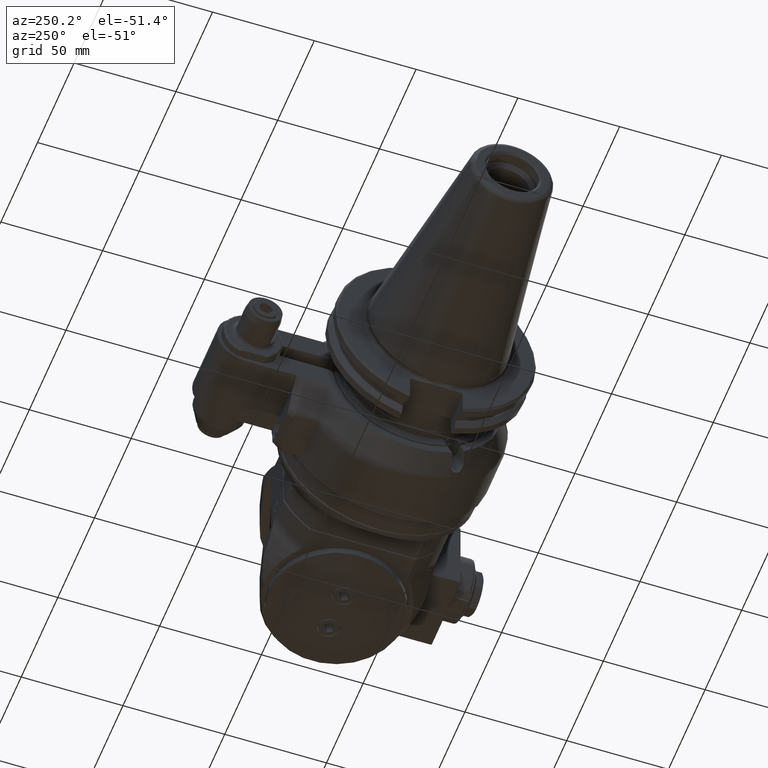
[diagram: clean part render]
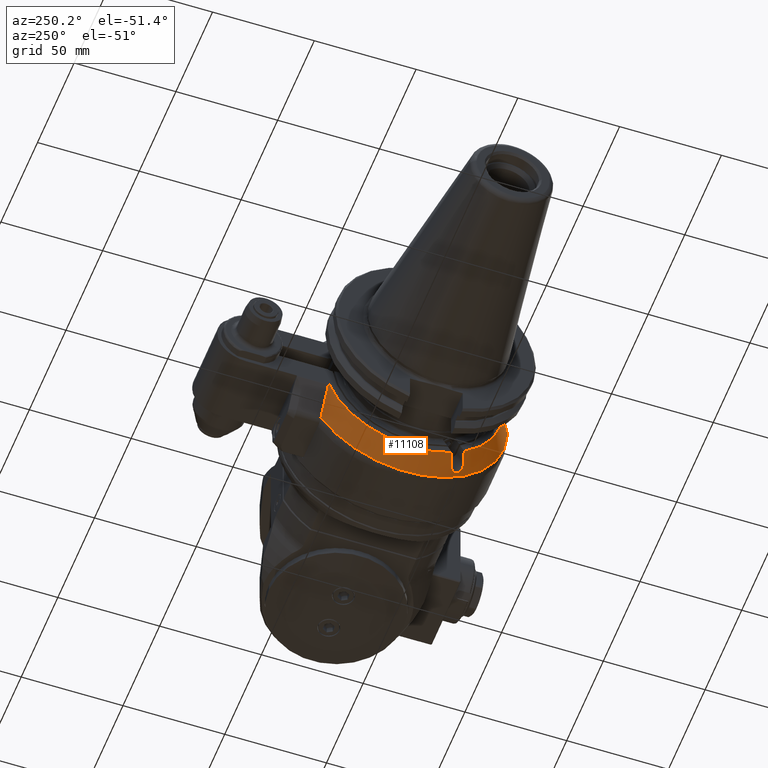
[diagram: same view with one face highlighted and labeled with its STEP entity id]
A machine part, auxiliary view. The second image highlights one B-rep face of the part: STEP entity #11108.
In plain terms, the highlighted conical surface has half-angle 30 deg.
Its self-contained STEP definition (entity closure, byte-faithful):
#337=CONICAL_SURFACE('',#12134,46.96410161514,0.523598775598299);
#771=CIRCLE('',#12135,49.92820323028);
#772=CIRCLE('',#12136,44.);
#773=CIRCLE('',#12137,44.);
#1354=FACE_OUTER_BOUND('',#2082,.T.);
#2082=EDGE_LOOP('',(#8945,#8946,#8947,#8948,#8949,#8950,#8951,#8952));
#4073=B_SPLINE_CURVE_WITH_KNOTS('',3,(#18545,#18546,#18547,#18548,#18549,
#18550,#18551,#18552,#18553,#18554),.UNSPECIFIED.,.F.,.F.,(4,3,3,4),(0.,
0.3333333333333,0.6666666666667,1.),.UNSPECIFIED.);
#4076=B_SPLINE_CURVE_WITH_KNOTS('',3,(#18607,#18608,#18609,#18610,#18611,
#18612,#18613,#18614,#18615,#18616,#18617,#18618,#18619,#18620,#18621,#18622,
#18623,#18624),.UNSPECIFIED.,.F.,.F.,(4,2,2,2,2,2,2,2,4),(1.11206982951625,
1.24885677734264,1.4029266724495,1.5444028479349,1.68587902342029,1.82735519890569,
1.96883137439109,2.12290126949794,2.25968821732541),.UNSPECIFIED.);
#4078=B_SPLINE_CURVE_WITH_KNOTS('',3,(#18646,#18647,#18648,#18649,#18650,
#18651,#18652,#18653,#18654,#18655),.UNSPECIFIED.,.F.,.F.,(4,3,3,4),(0.,
0.3333333333333,0.6666666666667,1.),.UNSPECIFIED.);
#4079=B_SPLINE_CURVE_WITH_KNOTS('',3,(#18661,#18662,#18663,#18664,#18665,
#18666,#18667,#18668,#18669,#18670),.UNSPECIFIED.,.F.,.F.,(4,3,3,4),(0.,
0.3333333333333,0.6666666666667,1.),.UNSPECIFIED.);
#4260=(
BOUNDED_CURVE()
B_SPLINE_CURVE(2,(#18424,#18425,#18426),.UNSPECIFIED.,.F.,.F.)
B_SPLINE_CURVE_WITH_KNOTS((3,3),(-2.43290769105801,-0.320305328668483),
 .UNSPECIFIED.)
CURVE()
GEOMETRIC_REPRESENTATION_ITEM()
RATIONAL_B_SPLINE_CURVE((1.03252076511009,1.03062027413364,1.00749895945509))
REPRESENTATION_ITEM('')
);
#4947=VERTEX_POINT('',#18412);
#4948=VERTEX_POINT('',#18423);
#4969=VERTEX_POINT('',#18542);
#4970=VERTEX_POINT('',#18544);
#4983=VERTEX_POINT('',#18605);
#4984=VERTEX_POINT('',#18606);
#4988=VERTEX_POINT('',#18645);
#4989=VERTEX_POINT('',#18659);
#6336=EDGE_CURVE('',#4947,#4948,#4260,.T.);
#6363=EDGE_CURVE('',#4970,#4969,#4073,.T.);
#6381=EDGE_CURVE('',#4983,#4984,#4076,.F.);
#6388=EDGE_CURVE('',#4983,#4988,#4078,.T.);
#6390=EDGE_CURVE('',#4970,#4947,#771,.T.);
#6391=EDGE_CURVE('',#4989,#4969,#772,.T.);
#6392=EDGE_CURVE('',#4989,#4984,#4079,.T.);
#6393=EDGE_CURVE('',#4948,#4988,#773,.T.);
#8945=ORIENTED_EDGE('',*,*,#6390,.F.);
#8946=ORIENTED_EDGE('',*,*,#6363,.T.);
#8947=ORIENTED_EDGE('',*,*,#6391,.F.);
#8948=ORIENTED_EDGE('',*,*,#6392,.T.);
#8949=ORIENTED_EDGE('',*,*,#6381,.F.);
#8950=ORIENTED_EDGE('',*,*,#6388,.T.);
#8951=ORIENTED_EDGE('',*,*,#6393,.F.);
#8952=ORIENTED_EDGE('',*,*,#6336,.F.);
#11108=ADVANCED_FACE('',(#1354),#337,.T.);
#12134=AXIS2_PLACEMENT_3D('',#18657,#14439,#14440);
#12135=AXIS2_PLACEMENT_3D('',#18658,#14441,#14442);
#12136=AXIS2_PLACEMENT_3D('',#18660,#14443,#14444);
#12137=AXIS2_PLACEMENT_3D('',#18671,#14445,#14446);
#14439=DIRECTION('center_axis',(1.,0.,0.));
#14440=DIRECTION('ref_axis',(0.,-1.,0.));
#14441=DIRECTION('center_axis',(1.,0.,0.));
#14442=DIRECTION('ref_axis',(0.,-0.999548602989596,-0.0300431400080999));
#14443=DIRECTION('center_axis',(-1.,0.,0.));
#14444=DIRECTION('ref_axis',(0.,-0.567304004296905,-0.823508449688707));
#14445=DIRECTION('center_axis',(-1.,0.,0.));
#14446=DIRECTION('ref_axis',(0.,0.948863636363632,-0.315686235979311));
#18412=CARTESIAN_POINT('',(-41.23205080757,41.75,-27.38180011986));
#18423=CARTESIAN_POINT('',(-51.5,41.74999999999,-13.89019438316));
#18424=CARTESIAN_POINT('Ctrl Pts',(-41.2320508075673,41.75,-27.3818001198562));
#18425=CARTESIAN_POINT('Ctrl Pts',(-48.0442956678564,41.75,-20.2102413126131));
#18426=CARTESIAN_POINT('Ctrl Pts',(-51.4999999999632,41.75,-13.8901943831554));
#18542=CARTESIAN_POINT('',(-51.5,-43.97442438509,-1.5));
#18544=CARTESIAN_POINT('',(-41.2320595617708,-49.9056607292726,-1.50000007595379));
#18545=CARTESIAN_POINT('Ctrl Pts',(-41.23206831446,-49.90565567486,-1.5));
#18546=CARTESIAN_POINT('Ctrl Pts',(-42.37293045262,-49.24668115316,-1.5));
#18547=CARTESIAN_POINT('Ctrl Pts',(-43.5138242319948,-48.5876765558151,
-1.5));
#18548=CARTESIAN_POINT('Ctrl Pts',(-44.6547122553555,-47.928662020786,-1.5));
#18549=CARTESIAN_POINT('Ctrl Pts',(-45.7956002787165,-47.2696474857567,
-1.5));
#18550=CARTESIAN_POINT('Ctrl Pts',(-46.9364825460635,-46.6106230130433,
-1.5));
#18551=CARTESIAN_POINT('Ctrl Pts',(-48.077363540237,-45.9515842405615,-1.5));
#18552=CARTESIAN_POINT('Ctrl Pts',(-49.2182445344102,-45.2925454680799,
-1.5));
#18553=CARTESIAN_POINT('Ctrl Pts',(-50.35912425541,-44.63349239583,-1.5));
#18554=CARTESIAN_POINT('Ctrl Pts',(-51.5,-43.97442438509,-1.5));
#18605=CARTESIAN_POINT('',(-46.5,-20.34687855495,-42.24182743261));
#18606=CARTESIAN_POINT('',(-46.5,-26.40905638145,-38.74182743261));
#18607=CARTESIAN_POINT('Ctrl Pts',(-46.5000000000002,-26.4090563814455,
-38.7418274326129));
#18608=CARTESIAN_POINT('Ctrl Pts',(-46.0992085079157,-26.5250786273062,
-38.9427838572518));
#18609=CARTESIAN_POINT('Ctrl Pts',(-45.6780271021362,-26.5877455833705,
-39.1945532832522));
#18610=CARTESIAN_POINT('Ctrl Pts',(-44.8336229766582,-26.5711996809164,
-39.7934207779667));
#18611=CARTESIAN_POINT('Ctrl Pts',(-44.416786404141,-26.4721822625297,-40.1489075806805));
#18612=CARTESIAN_POINT('Ctrl Pts',(-43.7689100689263,-26.1383338430384,
-40.8117265913294));
#18613=CARTESIAN_POINT('Ctrl Pts',(-43.4858969585476,-25.8928265156274,
-41.1623315039927));
#18614=CARTESIAN_POINT('Ctrl Pts',(-43.1011571537054,-25.2551263794943,
-41.8163473322267));
#18615=CARTESIAN_POINT('Ctrl Pts',(-43.,-24.8621451840586,-42.1193241407055));
#18616=CARTESIAN_POINT('Ctrl Pts',(-43.,-24.0453321040545,-42.5909113923235));
#18617=CARTESIAN_POINT('Ctrl Pts',(-43.1011571537054,-23.5864558934365,
-42.779754686541));
#18618=CARTESIAN_POINT('Ctrl Pts',(-43.4858969585476,-22.7012115036422,
-43.0050112903121));
#18619=CARTESIAN_POINT('Ctrl Pts',(-43.7689100689263,-22.2748250788787,
-43.0423244163336));
#18620=CARTESIAN_POINT('Ctrl Pts',(-44.416786404141,-21.5338827677997,-43.000036123302));
#18621=CARTESIAN_POINT('Ctrl Pts',(-44.8336229766582,-21.1765134567462,
-42.908044321685));
#18622=CARTESIAN_POINT('Ctrl Pts',(-45.6780271021394,-20.6496060415937,
-42.6229397461805));
#18623=CARTESIAN_POINT('Ctrl Pts',(-46.0992085079223,-20.4629008008123,
-42.4427838572491));
#18624=CARTESIAN_POINT('Ctrl Pts',(-46.5000000000096,-20.3468785549518,
-42.2418274326083));
#18645=CARTESIAN_POINT('',(-51.5,-18.89919836257,-39.7343717863));
#18646=CARTESIAN_POINT('Ctrl Pts',(-46.5000000000021,-20.3468785549516,
-42.2418274326133));
#18647=CARTESIAN_POINT('Ctrl Pts',(-47.0555636796788,-20.1860524218991,
-41.9632683989681));
#18648=CARTESIAN_POINT('Ctrl Pts',(-47.6111251834313,-20.0252176577258,
-41.6846944543344));
#18649=CARTESIAN_POINT('Ctrl Pts',(-48.1666839961781,-19.864373839952,-41.4061048113106));
#18650=CARTESIAN_POINT('Ctrl Pts',(-48.7222428089251,-19.7035300221781,
-41.1275151682867));
#18651=CARTESIAN_POINT('Ctrl Pts',(-49.2777989309903,-19.5426771511998,
-40.8489098273047));
#18652=CARTESIAN_POINT('Ctrl Pts',(-49.8333517949414,-19.381814745264,-40.5702879469552));
#18653=CARTESIAN_POINT('Ctrl Pts',(-50.3889046588924,-19.2209523393283,
-40.2916660666057));
#18654=CARTESIAN_POINT('Ctrl Pts',(-50.9444542651007,-19.0600803989606,
-40.0130276473512));
#18655=CARTESIAN_POINT('Ctrl Pts',(-51.5000000000014,-18.8991983625711,
-39.7343717863022));
#18657=CARTESIAN_POINT('Origin',(-46.36602540378,0.,0.));
#18658=CARTESIAN_POINT('Origin',(-41.23205080757,0.,0.));
#18659=CARTESIAN_POINT('',(-51.5,-24.96137618907,-36.2343717863));
#18660=CARTESIAN_POINT('Origin',(-51.5,0.,0.));
#18661=CARTESIAN_POINT('Ctrl Pts',(-51.4999999999995,-24.9613761890695,
-36.2343717862992));
#18662=CARTESIAN_POINT('Ctrl Pts',(-50.9444542651011,-25.1222582254511,
-36.5130276473516));
#18663=CARTESIAN_POINT('Ctrl Pts',(-50.3889046588926,-25.2831302048165,
-36.7916660440905));
#18664=CARTESIAN_POINT('Ctrl Pts',(-49.8333517949413,-25.4439926282826,
-37.070287914319));
#18665=CARTESIAN_POINT('Ctrl Pts',(-49.2777989309897,-25.6048550517487,
-37.3489097845476));
#18666=CARTESIAN_POINT('Ctrl Pts',(-48.7222428089239,-25.7657079191777,
-37.6275151275794));
#18667=CARTESIAN_POINT('Ctrl Pts',(-48.166683996177,-25.9265517183818,-37.9061047813243));
#18668=CARTESIAN_POINT('Ctrl Pts',(-47.6111251834304,-26.0873955175858,
-38.1846944350692));
#18669=CARTESIAN_POINT('Ctrl Pts',(-47.0555636796788,-26.2482302483888,
-38.4632683989682));
#18670=CARTESIAN_POINT('Ctrl Pts',(-46.5,-26.40905638145,-38.74182743261));
#18671=CARTESIAN_POINT('Origin',(-51.5,0.,0.));